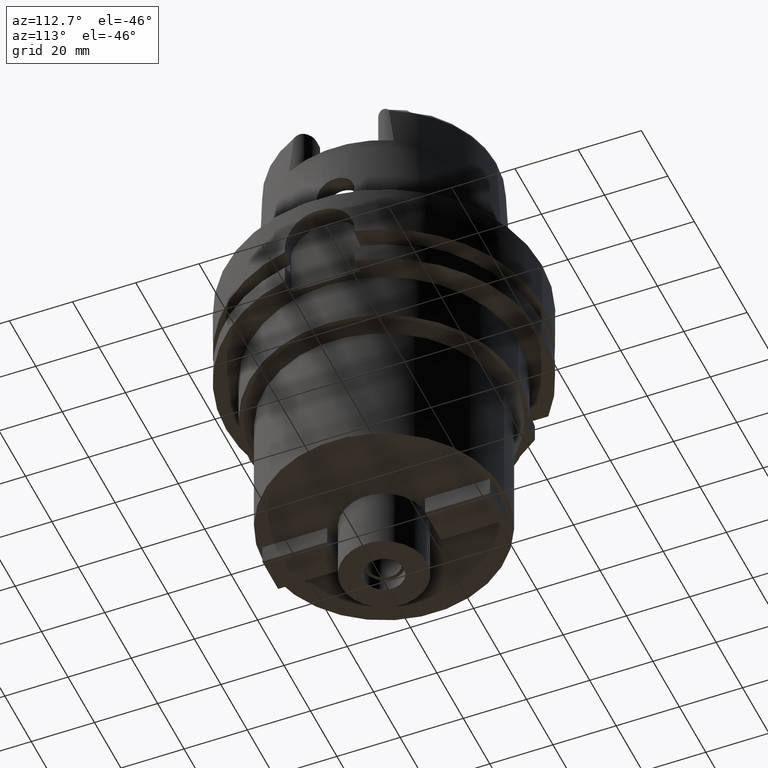
[diagram: clean part render]
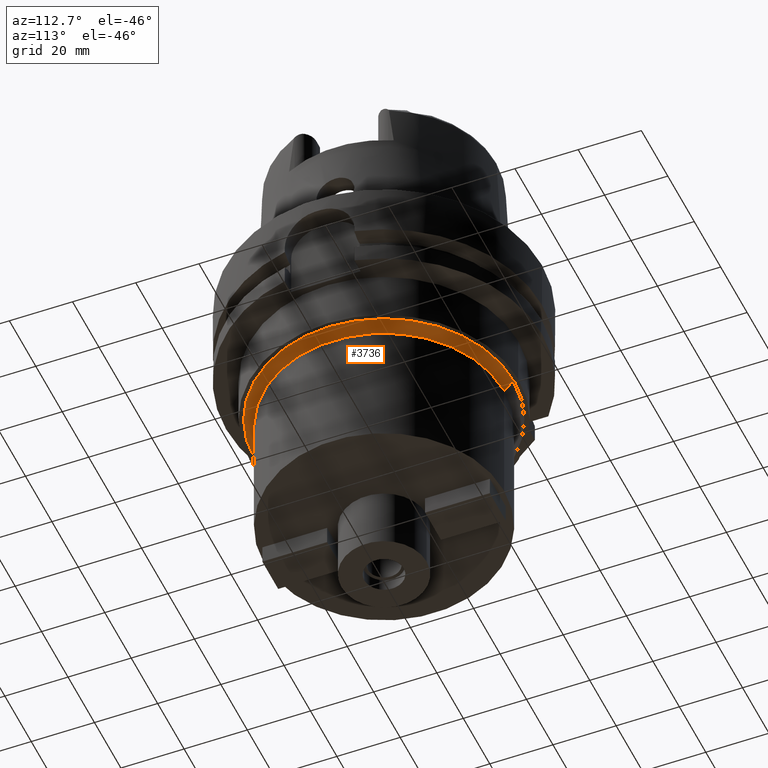
[diagram: same view with one face highlighted and labeled with its STEP entity id]
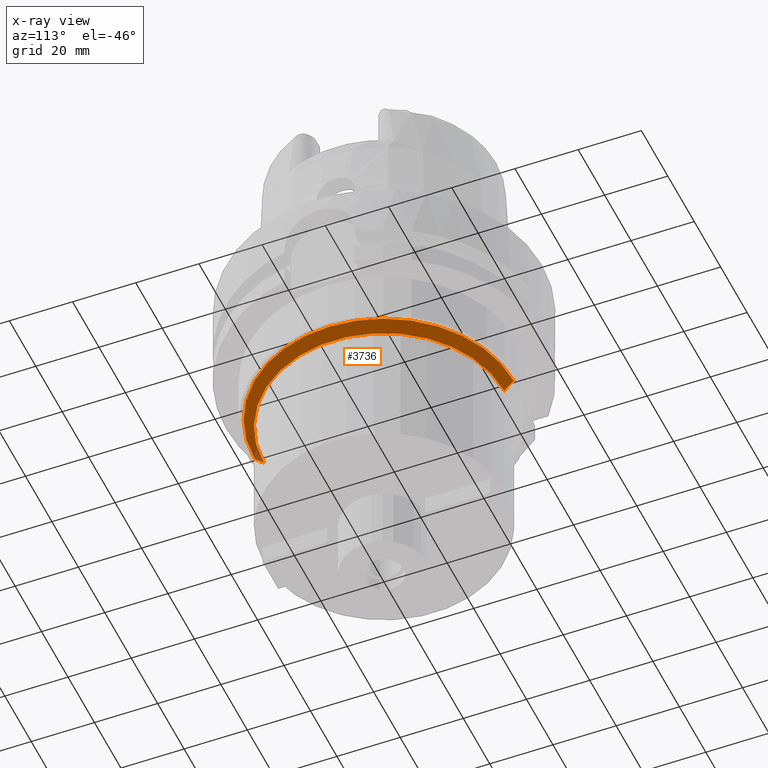
[diagram: x-ray of the same camera — body ghosted, the highlighted face saturated]
A machine part, auxiliary view. The second image highlights one B-rep face of the part: STEP entity #3736.
The next image is the same camera in x-ray: the body ghosted, the highlighted face saturated — about 1% of this face is hidden behind the body in this view.
In plain terms, the highlighted conical surface has half-angle 45 deg.
Its self-contained STEP definition (entity closure, byte-faithful):
#1213=DIRECTION('',(0.E0,7.071067811865E-1,-7.071067811865E-1));
#1214=VECTOR('',#1213,4.242640687119E0);
#1215=CARTESIAN_POINT('',(0.E0,-4.1E1,-4.5E1));
#1216=LINE('',#1215,#1214);
#1228=DIRECTION('',(0.E0,-7.071067811865E-1,-7.071067811865E-1));
#1229=VECTOR('',#1228,4.242640687119E0);
#1230=CARTESIAN_POINT('',(0.E0,4.1E1,-4.5E1));
#1231=LINE('',#1230,#1229);
#1235=CARTESIAN_POINT('',(0.E0,0.E0,-4.8E1));
#1236=DIRECTION('',(0.E0,0.E0,-1.E0));
#1237=DIRECTION('',(0.E0,1.E0,0.E0));
#1238=AXIS2_PLACEMENT_3D('',#1235,#1236,#1237);
#1267=CARTESIAN_POINT('',(0.E0,0.E0,-4.5E1));
#1268=DIRECTION('',(0.E0,0.E0,-1.E0));
#1269=DIRECTION('',(0.E0,1.E0,0.E0));
#1270=AXIS2_PLACEMENT_3D('',#1267,#1268,#1269);
#2642=CARTESIAN_POINT('',(0.E0,3.8E1,-4.8E1));
#2643=VERTEX_POINT('',#2642);
#2644=CARTESIAN_POINT('',(0.E0,-3.8E1,-4.8E1));
#2645=VERTEX_POINT('',#2644);
#2646=CARTESIAN_POINT('',(0.E0,4.1E1,-4.5E1));
#2647=VERTEX_POINT('',#2646);
#2648=CARTESIAN_POINT('',(0.E0,-4.1E1,-4.5E1));
#2649=VERTEX_POINT('',#2648);
#3724=CARTESIAN_POINT('',(0.E0,0.E0,-4.65E1));
#3725=DIRECTION('',(0.E0,0.E0,1.E0));
#3726=DIRECTION('',(0.E0,1.E0,0.E0));
#3727=AXIS2_PLACEMENT_3D('',#3724,#3725,#3726);
#3728=CONICAL_SURFACE('',#3727,3.95E1,4.5E1);
#3729=ORIENTED_EDGE('',*,*,#3714,.T.);
#3730=ORIENTED_EDGE('',*,*,#3691,.T.);
#3731=ORIENTED_EDGE('',*,*,#3718,.F.);
#3733=ORIENTED_EDGE('',*,*,#3732,.F.);
#3734=EDGE_LOOP('',(#3729,#3730,#3731,#3733));
#3735=FACE_OUTER_BOUND('',#3734,.F.);
#1239=CIRCLE('',#1238,3.8E1);
#1271=CIRCLE('',#1270,4.1E1);
#3691=EDGE_CURVE('',#2643,#2645,#1239,.T.);
#3714=EDGE_CURVE('',#2647,#2643,#1231,.T.);
#3718=EDGE_CURVE('',#2649,#2645,#1216,.T.);
#3732=EDGE_CURVE('',#2647,#2649,#1271,.T.);
#3736=ADVANCED_FACE('',(#3735),#3728,.T.);